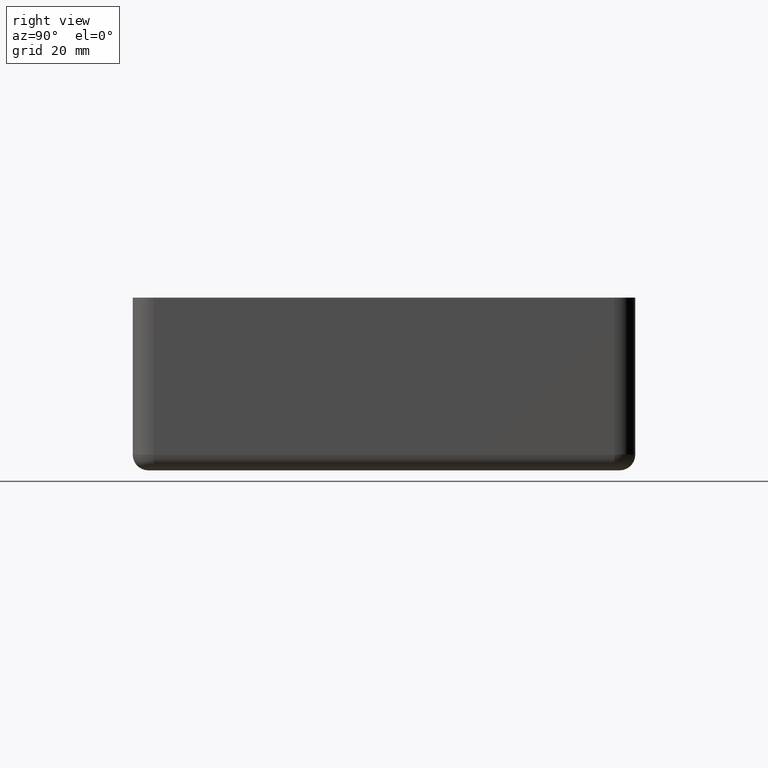
[diagram: clean part render]
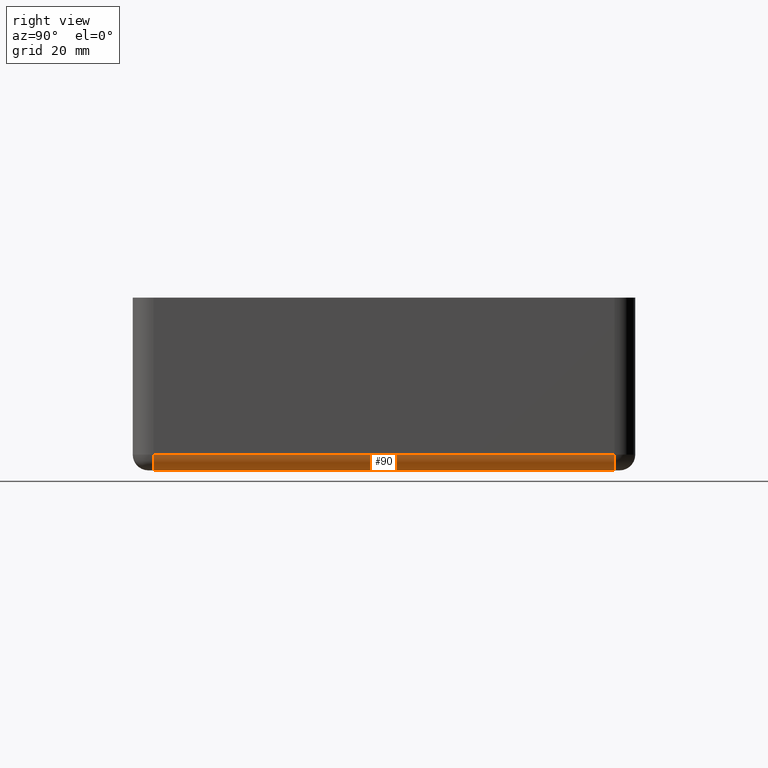
[diagram: same view with one face highlighted and labeled with its STEP entity id]
A machine part, right view. The second image highlights one B-rep face of the part: STEP entity #90.
In plain terms, the highlighted cylindrical surface (edge-blend (fillet) strip) has radius 3 mm, axis along (-0, 1, 0).
Its self-contained STEP definition (entity closure, byte-faithful):
#90 = ADVANCED_FACE( '', ( #146 ), #147, .T. );
#146 = FACE_OUTER_BOUND( '', #255, .T. );
#147 = CYLINDRICAL_SURFACE( '', #256, 3.00000000000000 );
#255 = EDGE_LOOP( '', ( #453, #454, #455, #456 ) );
#256 = AXIS2_PLACEMENT_3D( '', #457, #458, #459 );
#453 = ORIENTED_EDGE( '', *, *, #692, .T. );
#454 = ORIENTED_EDGE( '', *, *, #682, .T. );
#455 = ORIENTED_EDGE( '', *, *, #690, .F. );
#456 = ORIENTED_EDGE( '', *, *, #693, .T. );
#457 = CARTESIAN_POINT( '', ( -1.04083408558608E-014, -67.5000000000000, -30.0000000000000 ) );
#458 = DIRECTION( '', ( -1.09564014614029E-032, 1.00000000000000, 8.65927457071936E-017 ) );
#459 = DIRECTION( '', ( 0.707106781186547, 6.12303176911189E-017, -0.707106781186547 ) );
#682 = EDGE_CURVE( '', #833, #831, #834, .T. );
#690 = EDGE_CURVE( '', #844, #831, #845, .T. );
#692 = EDGE_CURVE( '', #847, #833, #848, .T. );
#693 = EDGE_CURVE( '', #844, #847, #849, .T. );
#831 = VERTEX_POINT( '', #1021 );
#833 = VERTEX_POINT( '', #1023 );
#834 = LINE( '', #1024, #1025 );
#844 = VERTEX_POINT( '', #1036 );
#845 = CIRCLE( '', #1037, 3.00000000000000 );
#847 = VERTEX_POINT( '', #1039 );
#848 = CIRCLE( '', #1040, 3.00000000000000 );
#849 = LINE( '', #1041, #1042 );
#1021 = CARTESIAN_POINT( '', ( -1.64798730217797E-014, -0.999999999999992, -33.0000000000000 ) );
#1023 = CARTESIAN_POINT( '', ( -6.93889390390723E-015, -89.0000000000000, -33.0000000000000 ) );
#1024 = CARTESIAN_POINT( '', ( -1.04083408558608E-014, -67.5000000000000, -33.0000000000000 ) );
#1025 = VECTOR( '', #1204, 1000.00000000000 );
#1036 = CARTESIAN_POINT( '', ( 2.99999999999998, -0.999999999999993, -30.0000000000000 ) );
#1037 = AXIS2_PLACEMENT_3D( '', #1224, #1225, #1226 );
#1039 = CARTESIAN_POINT( '', ( 3.00000000000000, -89.0000000000000, -30.0000000000000 ) );
#1040 = AXIS2_PLACEMENT_3D( '', #1230, #1231, #1232 );
#1041 = CARTESIAN_POINT( '', ( 2.99999999999998, -67.5000000000000, -30.0000000000000 ) );
#1042 = VECTOR( '', #1233, 1000.00000000000 );
#1204 = DIRECTION( '', ( 0.000000000000000, 1.00000000000000, 8.65927457071936E-017 ) );
#1224 = CARTESIAN_POINT( '', ( -1.64798730217797E-014, -0.999999999999992, -30.0000000000000 ) );
#1225 = DIRECTION( '', ( 0.000000000000000, 1.00000000000000, 8.65927457071935E-017 ) );
#1226 = DIRECTION( '', ( 1.00000000000000, 3.10589904968477E-033, -3.58678896750442E-017 ) );
#1230 = CARTESIAN_POINT( '', ( -6.93889390390723E-015, -89.0000000000000, -30.0000000000000 ) );
#1231 = DIRECTION( '', ( 0.000000000000000, 1.00000000000000, 8.65927457071935E-017 ) );
#1232 = DIRECTION( '', ( 1.00000000000000, 3.10589904968477E-033, -3.58678896750442E-017 ) );
#1233 = DIRECTION( '', ( 0.000000000000000, -1.00000000000000, -8.65927457071936E-017 ) );